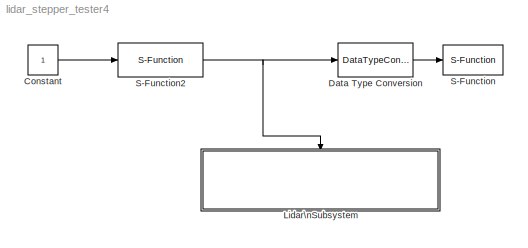
MODEL lidar_stepper_tester4
KIND model
BLOCK [Constant] Constant
  OutDataType = fixdt(1, 16)
  OutDataTypeMode = int32
  OutDataTypeStr = int32
  OutScaling = 2^0
BLOCK [DataTypeConversion] Data Type Conversion
  OutDataType = fixdt(1, 16)
  OutDataTypeMode = uint32
  OutDataTypeStr = uint32
  OutScaling = 2^0
  RndMeth = Floor
  SaturateOnIntegerOverflow = off
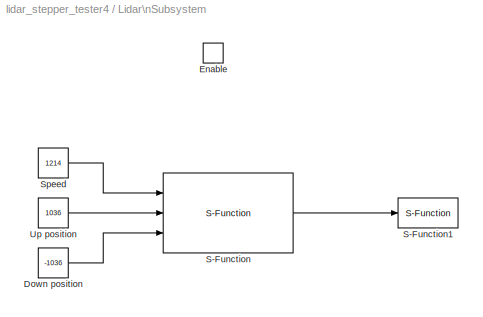
BLOCK [SubSystem] Lidar\nSubsystem
  FunctionWithSeparateData = off
  MaskHideContents = off
  MinAlgLoopOccurrences = off
  Opaque = off
  Ports = [0, 0, 1]
  PropExecContextOutsideSubsystem = off
  RTWSystemCode = Auto
  RequestExecContextInheritance = off
  TreatAsAtomicUnit = on
BLOCK [Constant] Lidar\nSubsystem/Down position
  OutDataType = fixdt(1, 16)
  OutScaling = 2^0
  Value = -1036
BLOCK [EnablePort] Lidar\nSubsystem/Enable
  Ports = []
BLOCK [S-Function] Lidar\nSubsystem/S-Function
  EnableBusSupport = off
  FunctionName = lidar_stepper_test2
  Ports = [3, 1]
BLOCK [S-Function] Lidar\nSubsystem/S-Function1
  EnableBusSupport = off
  FunctionName = lidarExport
  Ports = [1]
BLOCK [Constant] Lidar\nSubsystem/Speed
  OutDataType = fixdt(1, 16)
  OutScaling = 2^0
  Value = 1214
BLOCK [Constant] Lidar\nSubsystem/Up position
  OutDataType = fixdt(1, 16)
  OutScaling = 2^0
  Value = 1036
BLOCK [S-Function] S-Function
  EnableBusSupport = off
  FunctionName = printOut
  Ports = [1]
BLOCK [S-Function] S-Function2
  EnableBusSupport = off
  FunctionName = comtestv3_sfun
  Ports = [1, 1]
LINE Constant:1 -> S-Function2:1
LINE Data Type Conversion:1 -> S-Function:1
LINE Lidar\nSubsystem/Down position:1 -> Lidar\nSubsystem/S-Function:3
LINE Lidar\nSubsystem/S-Function:1 -> Lidar\nSubsystem/S-Function1:1
LINE Lidar\nSubsystem/Speed:1 -> Lidar\nSubsystem/S-Function:1
LINE Lidar\nSubsystem/Up position:1 -> Lidar\nSubsystem/S-Function:2
NET S-Function2:1 -> Data Type Conversion:1, Lidar\nSubsystem:enable
note: NET lines group one-source signal fan-out (src -> all destinations, sorted); 1:1 wires keep LINE
